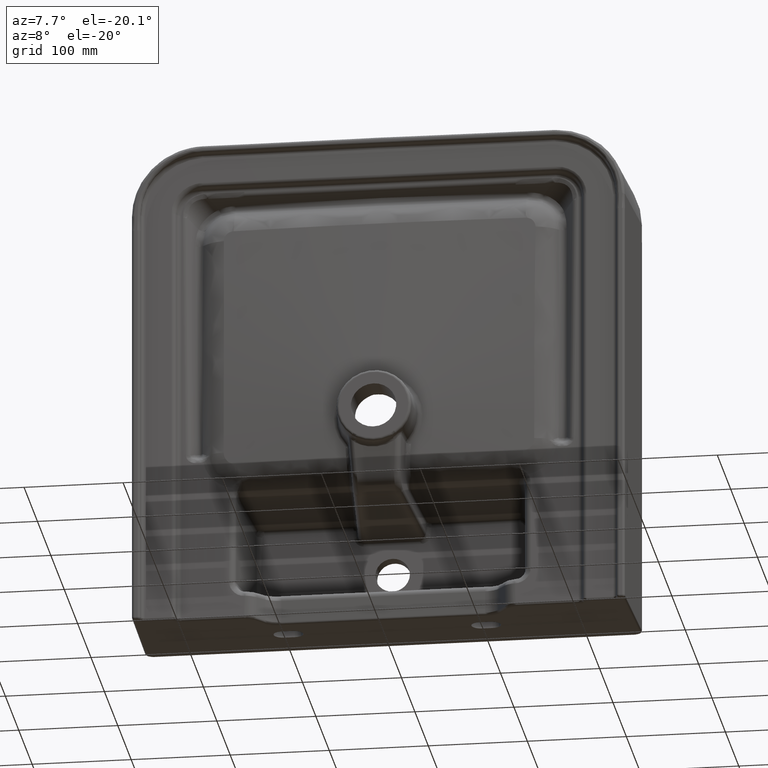
[diagram: clean part render]
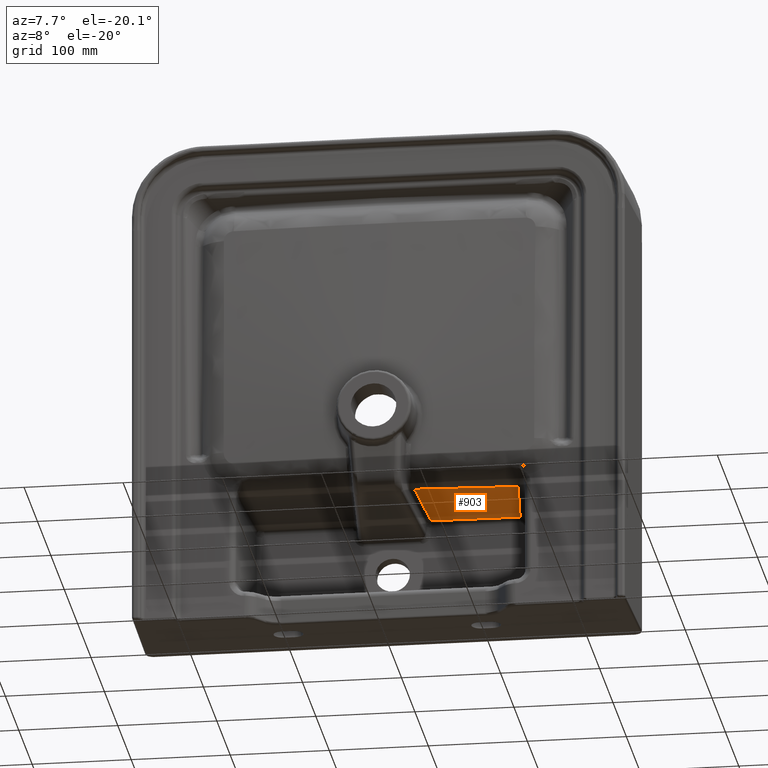
[diagram: same view with one face highlighted and labeled with its STEP entity id]
A machine part, auxiliary view. The second image highlights one B-rep face of the part: STEP entity #903.
In plain terms, the highlighted planar face has unit normal (0, -0.0872, -0.9962).
Its self-contained STEP definition (entity closure, byte-faithful):
#123=(
BOUNDED_CURVE()
B_SPLINE_CURVE(3,(#9130,#9131,#9132,#9133,#9134,#9135,#9136),
 .UNSPECIFIED.,.F.,.F.)
B_SPLINE_CURVE_WITH_KNOTS((4,3,4),(0.,0.666666666666667,1.),
 .UNSPECIFIED.)
CURVE()
GEOMETRIC_REPRESENTATION_ITEM()
RATIONAL_B_SPLINE_CURVE((1.,1.,1.,1.,1.,1.,1.))
REPRESENTATION_ITEM('')
);
#437=PLANE('',#4786);
#665=LINE('',#9128,#818);
#666=LINE('',#9138,#819);
#818=VECTOR('',#5438,1.);
#819=VECTOR('',#5439,1.);
#903=ADVANCED_FACE('',(#1198),#437,.T.);
#1198=FACE_OUTER_BOUND('',#1507,.T.);
#1507=EDGE_LOOP('',(#2372,#2373,#2374,#2375));
#2372=ORIENTED_EDGE('',*,*,#4091,.T.);
#2373=ORIENTED_EDGE('',*,*,#4092,.T.);
#2374=ORIENTED_EDGE('',*,*,#4093,.T.);
#2375=ORIENTED_EDGE('',*,*,#4094,.T.);
#3648=VERTEX_POINT('',#9126);
#3649=VERTEX_POINT('',#9127);
#3650=VERTEX_POINT('',#9129);
#3651=VERTEX_POINT('',#9137);
#4091=EDGE_CURVE('',#3648,#3649,#4568,.T.);
#4092=EDGE_CURVE('',#3649,#3650,#665,.T.);
#4093=EDGE_CURVE('',#3650,#3651,#123,.T.);
#4094=EDGE_CURVE('',#3651,#3648,#666,.T.);
#4568=B_SPLINE_CURVE_WITH_KNOTS('',3,(#9120,#9121,#9122,#9123,#9124,#9125),
 .UNSPECIFIED.,.F.,.F.,(4,2,4),(0.,0.5,1.),.UNSPECIFIED.);
#4786=AXIS2_PLACEMENT_3D('',#9139,#5440,#5441);
#5438=DIRECTION('',(0.086826594183345,0.0868265926046541,0.99243250922125));
#5439=DIRECTION('',(0.104200587507998,-0.0866812919376245,-0.990771714973239));
#5440=DIRECTION('',(2.76499572738385E-015,0.996194698202151,-0.087155741485723));
#5441=DIRECTION('',(0.,0.087155741485723,0.996194698202151));
#9120=CARTESIAN_POINT('',(136.895611916578,59.8713624510476,-62.2834680949486));
#9121=CARTESIAN_POINT('',(119.583856541827,59.7951307473112,-63.1548004684983));
#9122=CARTESIAN_POINT('',(102.271722229406,59.7197217293588,-64.0167295003695));
#9123=CARTESIAN_POINT('',(67.6442323200629,59.5758972050224,-65.6606513599399));
#9124=CARTESIAN_POINT('',(50.3298539882634,59.5053600248335,-66.4668950305525));
#9125=CARTESIAN_POINT('',(33.0063661122008,59.4545999562683,-67.0470852776102));
#9126=CARTESIAN_POINT('',(136.895611916579,59.8713624510476,-62.2834680949496));
#9127=CARTESIAN_POINT('',(33.0063661122008,59.4545999562683,-67.0470852776102));
#9128=CARTESIAN_POINT('',(42.3524800073176,68.8007136814529,39.7794849873965));
#9129=CARTESIAN_POINT('',(39.5907440631665,66.038977787516,8.2126988127274));
#9130=CARTESIAN_POINT('',(-152.957124589873,65.7326242696348,4.71106202911554));
#9131=CARTESIAN_POINT('',(-90.2178241551296,65.8324472930377,5.85204442427942));
#9132=CARTESIAN_POINT('',(-27.4785237203856,65.9322703164406,6.9930268194433));
#9133=CARTESIAN_POINT('',(35.2607767143583,66.0320933398435,8.13400921460719));
#9134=CARTESIAN_POINT('',(66.6304269317303,66.082004851545,8.70450041218913));
#9135=CARTESIAN_POINT('',(98.0000771491022,66.1319163632465,9.27499160977107));
#9136=CARTESIAN_POINT('',(129.369727366474,66.1319163632464,9.27499160977107));
#9137=CARTESIAN_POINT('',(129.369727366474,66.1319163632464,9.27499160977108));
#9138=CARTESIAN_POINT('',(128.30161357529,67.0204476620661,19.4309509760962));
#9139=CARTESIAN_POINT('',(194.672441711229,67.6436724542324,26.5544430508677));